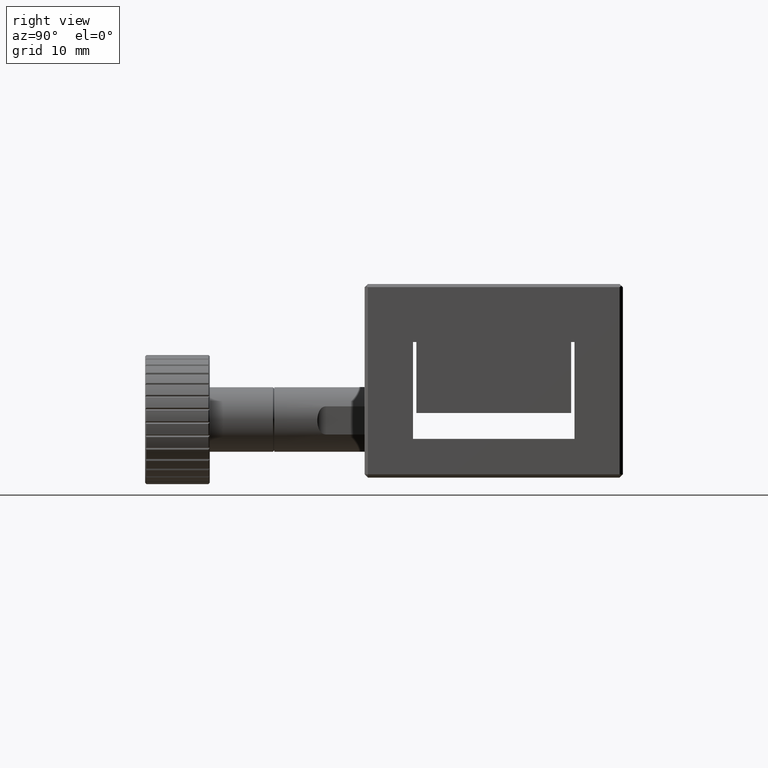
[diagram: clean part render]
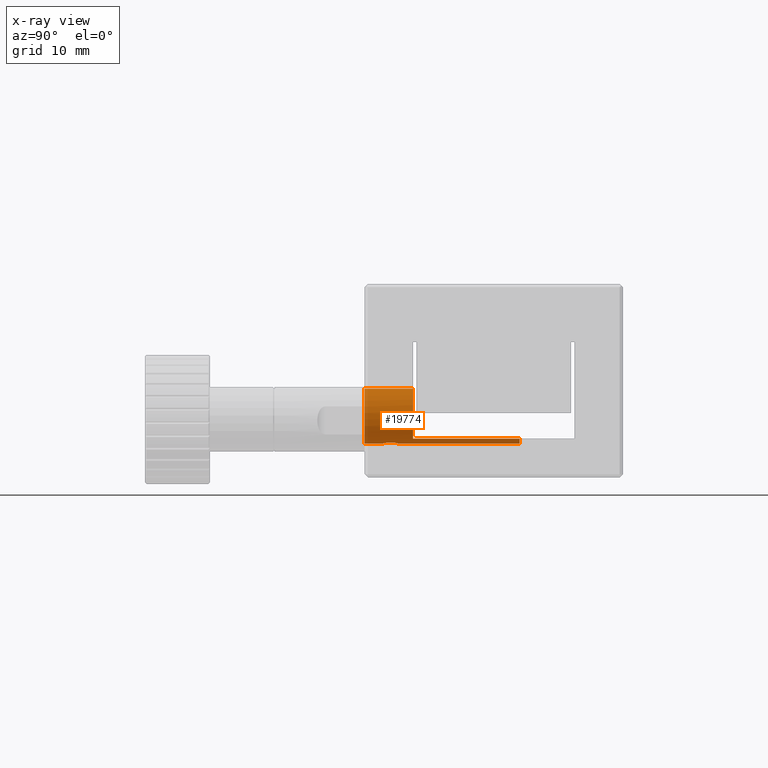
[diagram: x-ray — body ghosted, one internal face saturated and labeled with its STEP entity id]
A machine part, right view, then the same camera in x-ray: the body is ghosted and one INTERNAL B-rep face — a face not visible from any outside direction — is saturated and labeled: STEP entity #19774.
In plain terms, the highlighted cylindrical surface (edge-blend (fillet) strip) has radius 4.25 mm, axis along (0, -1, 0).
Its self-contained STEP definition (entity closure, byte-faithful):
#148 = AXIS2_PLACEMENT_3D ( 'NONE', #8202, #19478, #9811 ) ;
#220 = DIRECTION ( 'NONE',  ( 3.552713678800500900E-015, 0.0000000000000000000, -1.000000000000000000 ) ) ;
#757 = CIRCLE ( 'NONE', #148, 4.249999999999999100 ) ;
#812 = CARTESIAN_POINT ( 'NONE',  ( 0.0000000000000000000, 4.000000000000000000, 5.250000000000000000 ) ) ;
#1443 = ORIENTED_EDGE ( 'NONE', *, *, #3396, .F. ) ;
#1623 = VECTOR ( 'NONE', #5628, 1000.000000000000000 ) ;
#1663 = B_SPLINE_CURVE_WITH_KNOTS ( 'NONE', 3,
 ( #14124, #10898, #15772, #6082, #17367, #7708, #18983, #9320, #20624, #10960 ),
 .UNSPECIFIED., .F., .F.,
 ( 4, 2, 2, 2, 4 ),
 ( 0.001963617544144471200, 0.002454531695775611400, 0.002945445847406751600, 0.003436359999037891900, 0.003927274150669036800 ),
 .UNSPECIFIED. ) ;
#1669 = CYLINDRICAL_SURFACE ( 'NONE', #9239, 4.249999999999999100 ) ;
#1816 = DIRECTION ( 'NONE',  ( 0.0000000000000000000, 0.0000000000000000000, -1.000000000000000000 ) ) ;
#2353 = CARTESIAN_POINT ( 'NONE',  ( 1.091351239772402800, -16.63104597535987100, 5.391993996522044700 ) ) ;
#2395 = EDGE_CURVE ( 'NONE', #17333, #8436, #5538, .T. ) ;
#2718 = DIRECTION ( 'NONE',  ( 0.0000000000000000000, -1.000000000000000000, 0.0000000000000000000 ) ) ;
#2762 = CARTESIAN_POINT ( 'NONE',  ( 0.0000000000000000000, -20.00000000000000000, 9.500000000000000000 ) ) ;
#3091 = EDGE_CURVE ( 'NONE', #8643, #6666, #17603, .T. ) ;
#3396 = EDGE_CURVE ( 'NONE', #19358, #20302, #5049, .T. ) ;
#4008 = CARTESIAN_POINT ( 'NONE',  ( 0.0000000000000000000, 4.000000000000000000, 5.250000000000000000 ) ) ;
#4014 = CARTESIAN_POINT ( 'NONE',  ( 0.7696478124020235100, -16.99818986883331500, 5.318630884447500800 ) ) ;
#4147 = CARTESIAN_POINT ( 'NONE',  ( 0.0000000000000000000, -14.75000000000000200, 5.250000000000000000 ) ) ;
#4291 = CARTESIAN_POINT ( 'NONE',  ( 5.204748896376249700E-016, 4.000000000000000000, 13.74999999999999800 ) ) ;
#4419 = DIRECTION ( 'NONE',  ( 0.0000000000000000000, 0.0000000000000000000, -1.000000000000000000 ) ) ;
#5049 = LINE ( 'NONE', #4291, #9318 ) ;
#5056 = CARTESIAN_POINT ( 'NONE',  ( 0.0000000000000000000, -20.00000000000000000, 5.250000000000000000 ) ) ;
#5121 = CARTESIAN_POINT ( 'NONE',  ( 0.0000000000000000000, 4.000000000000000000, 9.500000000000000000 ) ) ;
#5431 = DIRECTION ( 'NONE',  ( 0.0000000000000000000, 1.000000000000000000, 0.0000000000000000000 ) ) ;
#5538 = LINE ( 'NONE', #812, #13589 ) ;
#5628 = DIRECTION ( 'NONE',  ( 0.0000000000000000000, -1.000000000000000000, 0.0000000000000000000 ) ) ;
#5632 = CARTESIAN_POINT ( 'NONE',  ( 0.3308405521699095400, -17.21634490084200300, 5.260203845008332400 ) ) ;
#6012 = CARTESIAN_POINT ( 'NONE',  ( 1.250000000000000000, -16.00000000000000000, 5.437980797682019600 ) ) ;
#6082 = CARTESIAN_POINT ( 'NONE',  ( 0.6311673102802111100, -14.90871002289022400, 5.294377776286555800 ) ) ;
#6666 = VERTEX_POINT ( 'NONE', #20681 ) ;
#7142 = EDGE_LOOP ( 'NONE', ( #1443, #12837, #17016, #19427, #11025, #20691, #17282, #15991, #13686 ) ) ;
#7279 = CARTESIAN_POINT ( 'NONE',  ( 0.0000000000000000000, -17.25000000000000000, 5.250000000000000000 ) ) ;
#7512 = EDGE_CURVE ( 'NONE', #18783, #8643, #9606, .T. ) ;
#7595 = EDGE_CURVE ( 'NONE', #6666, #11521, #15085, .T. ) ;
#7708 = CARTESIAN_POINT ( 'NONE',  ( 0.9983213669767701000, -15.23052072608141600, 5.367255939390204000 ) ) ;
#8202 = CARTESIAN_POINT ( 'NONE',  ( 0.0000000000000000000, -12.50000000000000000, 9.500000000000000000 ) ) ;
#8436 = VERTEX_POINT ( 'NONE', #5056 ) ;
#8643 = VERTEX_POINT ( 'NONE', #18441 ) ;
#9116 = VECTOR ( 'NONE', #5431, 1000.000000000000000 ) ;
#9239 = AXIS2_PLACEMENT_3D ( 'NONE', #5121, #11632, #1816 ) ;
#9318 = VECTOR ( 'NONE', #2718, 1000.000000000000000 ) ;
#9320 = CARTESIAN_POINT ( 'NONE',  ( 1.216342972191880600, -15.66918070263722400, 5.427257322178071800 ) ) ;
#9606 = LINE ( 'NONE', #16731, #9116 ) ;
#9811 = DIRECTION ( 'NONE',  ( 0.0000000000000000000, 0.0000000000000000000, -1.000000000000000000 ) ) ;
#9964 = DIRECTION ( 'NONE',  ( -0.0000000000000000000, 1.000000000000000000, -0.0000000000000000000 ) ) ;
#10379 = AXIS2_PLACEMENT_3D ( 'NONE', #19633, #9964, #220 ) ;
#10898 = CARTESIAN_POINT ( 'NONE',  ( 0.1660611320446876100, -14.74999999995944400, 5.249999999988073500 ) ) ;
#10960 = CARTESIAN_POINT ( 'NONE',  ( 1.250000000000000000, -16.00000000000000000, 5.437980797682019600 ) ) ;
#11025 = ORIENTED_EDGE ( 'NONE', *, *, #7595, .T. ) ;
#11260 = EDGE_CURVE ( 'NONE', #19358, #18783, #757, .T. ) ;
#11491 = EDGE_CURVE ( 'NONE', #20049, #17333, #16294, .T. ) ;
#11521 = VERTEX_POINT ( 'NONE', #4147 ) ;
#11632 = DIRECTION ( 'NONE',  ( 0.0000000000000000000, -1.000000000000000000, 0.0000000000000000000 ) ) ;
#11869 = CARTESIAN_POINT ( 'NONE',  ( 0.0000000000000000000, -17.25000000000000000, 5.250000000000000000 ) ) ;
#12075 = CARTESIAN_POINT ( 'NONE',  ( 1.216995398698716500, -16.32892058481767400, 5.427447599758862900 ) ) ;
#12146 = CARTESIAN_POINT ( 'NONE',  ( 2.410912705124114800, -12.50000000000000000, 6.000000000000000000 ) ) ;
#12837 = ORIENTED_EDGE ( 'NONE', *, *, #11260, .T. ) ;
#13539 = CIRCLE ( 'NONE', #18753, 4.249999999999999100 ) ;
#13589 = VECTOR ( 'NONE', #16980, 1000.000000000000000 ) ;
#13656 = CARTESIAN_POINT ( 'NONE',  ( 0.9986654841992277400, -16.76903057159374900, 5.367340724630129700 ) ) ;
#13686 = ORIENTED_EDGE ( 'NONE', *, *, #14527, .T. ) ;
#14068 = DIRECTION ( 'NONE',  ( 0.0000000000000000000, -1.000000000000000000, 0.0000000000000000000 ) ) ;
#14124 = CARTESIAN_POINT ( 'NONE',  ( 0.0000000000000000000, -14.75000000000000200, 5.250000000000000000 ) ) ;
#14527 = EDGE_CURVE ( 'NONE', #8436, #20302, #13539, .T. ) ;
#15085 = LINE ( 'NONE', #4008, #1623 ) ;
#15129 = FACE_OUTER_BOUND ( 'NONE', #7142, .T. ) ;
#15331 = CARTESIAN_POINT ( 'NONE',  ( 0.6310709487723985500, -17.09119193837744900, 5.294399405024565300 ) ) ;
#15772 = CARTESIAN_POINT ( 'NONE',  ( 0.3289399071645354200, -14.78300183846433700, 5.260020165185530100 ) ) ;
#15991 = ORIENTED_EDGE ( 'NONE', *, *, #2395, .T. ) ;
#16294 = B_SPLINE_CURVE_WITH_KNOTS ( 'NONE', 3,
 ( #18474, #20038, #12075, #2353, #13656, #4014, #15331, #5632, #16931, #7279 ),
 .UNSPECIFIED., .F., .F.,
 ( 4, 2, 2, 2, 4 ),
 ( 0.003927274150669036800, 0.004418203603955991900, 0.004909133057242946000, 0.005400062510529901100, 0.005890991963816855300 ),
 .UNSPECIFIED. ) ;
#16462 = CARTESIAN_POINT ( 'NONE',  ( 5.204748896376250700E-016, -20.00000000000000000, 13.74999999999999800 ) ) ;
#16731 = CARTESIAN_POINT ( 'NONE',  ( 2.410912719999991300, 0.0000000000000000000, 6.000000000000000000 ) ) ;
#16916 = CARTESIAN_POINT ( 'NONE',  ( 5.204748896376250700E-016, -12.50000000000000000, 13.74999999999999800 ) ) ;
#16931 = CARTESIAN_POINT ( 'NONE',  ( 0.1660747872104331700, -17.25000000004055400, 5.249999999988068200 ) ) ;
#16980 = DIRECTION ( 'NONE',  ( 0.0000000000000000000, -1.000000000000000000, 0.0000000000000000000 ) ) ;
#17016 = ORIENTED_EDGE ( 'NONE', *, *, #7512, .T. ) ;
#17282 = ORIENTED_EDGE ( 'NONE', *, *, #11491, .T. ) ;
#17333 = VERTEX_POINT ( 'NONE', #11869 ) ;
#17367 = CARTESIAN_POINT ( 'NONE',  ( 0.7691854810316015600, -15.00145225425980700, 5.318544186764840200 ) ) ;
#17603 = CIRCLE ( 'NONE', #10379, 4.249999999999999100 ) ;
#18441 = CARTESIAN_POINT ( 'NONE',  ( 2.410912705124114800, 4.000000000000003600, 6.000000000000000000 ) ) ;
#18474 = CARTESIAN_POINT ( 'NONE',  ( 1.250000000000000000, -16.00000000000000000, 5.437980797682019600 ) ) ;
#18753 = AXIS2_PLACEMENT_3D ( 'NONE', #2762, #14068, #4419 ) ;
#18783 = VERTEX_POINT ( 'NONE', #12146 ) ;
#18983 = CARTESIAN_POINT ( 'NONE',  ( 1.091252768055919200, -15.36904910672979300, 5.391972426825375900 ) ) ;
#19358 = VERTEX_POINT ( 'NONE', #16916 ) ;
#19427 = ORIENTED_EDGE ( 'NONE', *, *, #3091, .T. ) ;
#19478 = DIRECTION ( 'NONE',  ( -0.0000000000000000000, 1.000000000000000000, -0.0000000000000000000 ) ) ;
#19633 = CARTESIAN_POINT ( 'NONE',  ( 0.0000000000000000000, 4.000000000000000000, 9.500000000000000000 ) ) ;
#19774 = ADVANCED_FACE ( 'NONE', ( #15129 ), #1669, .F. ) ;
#20038 = CARTESIAN_POINT ( 'NONE',  ( 1.250000000834393400, -16.16606761592977300, 5.437980797938785700 ) ) ;
#20049 = VERTEX_POINT ( 'NONE', #6012 ) ;
#20058 = EDGE_CURVE ( 'NONE', #11521, #20049, #1663, .T. ) ;
#20302 = VERTEX_POINT ( 'NONE', #16462 ) ;
#20624 = CARTESIAN_POINT ( 'NONE',  ( 1.249999999165633200, -15.83393754762885500, 5.437980797425262300 ) ) ;
#20681 = CARTESIAN_POINT ( 'NONE',  ( 0.0000000000000000000, 4.000000000000000000, 5.250000000000000000 ) ) ;
#20691 = ORIENTED_EDGE ( 'NONE', *, *, #20058, .T. ) ;